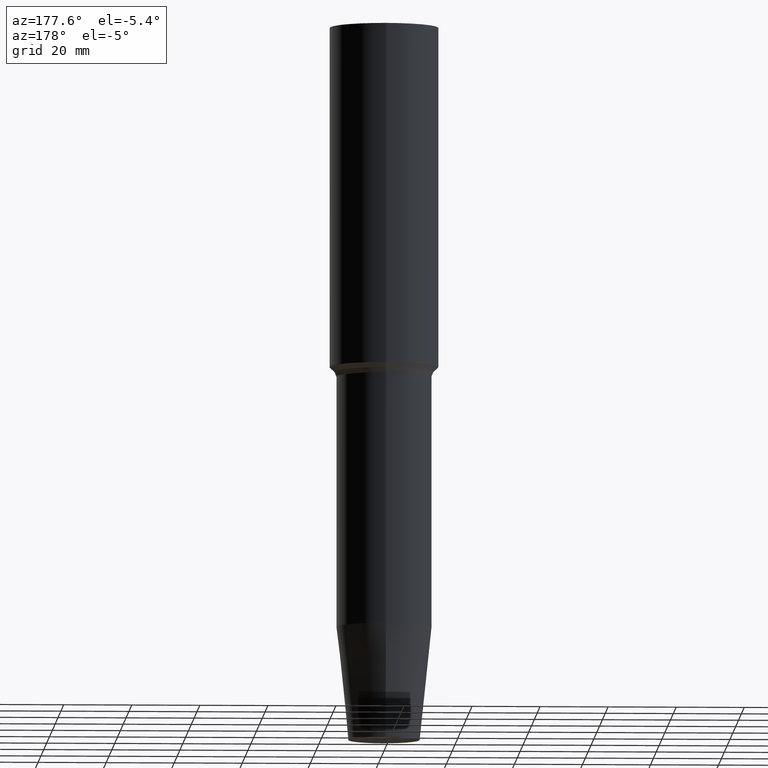
[diagram: clean part render]
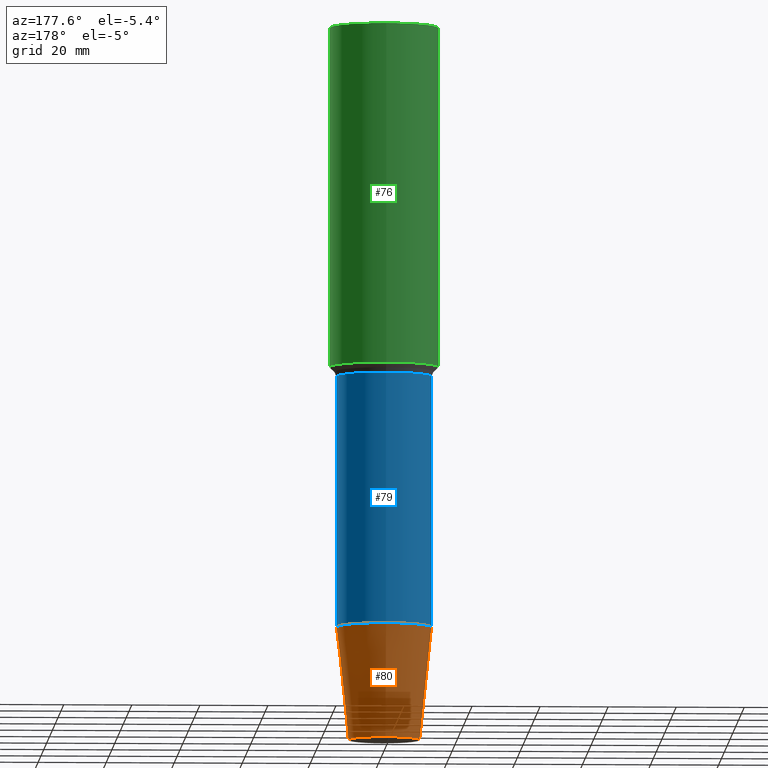
[diagram: same view with three faces highlighted in distinct colors, each labeled with its STEP entity id]
A machine part, auxiliary view with three faces highlighted in distinct colors.
Their STEP definitions:

[orange] entity #80 — the highlighted conical surface has half-angle 6 deg.
#80=ADVANCED_FACE('',(#97,#98),#99,.T.);
#97=FACE_BOUND('',#116,.T.);
#98=FACE_BOUND('',#117,.T.);
#99=CONICAL_SURFACE('',#118,12.250000000001,0.104719755119683);
#116=EDGE_LOOP('',(#145));
#117=EDGE_LOOP('',(#146));
#118=AXIS2_PLACEMENT_3D('',#147,#148,#149);
#145=ORIENTED_EDGE('',*,*,#159,.F.);
#146=ORIENTED_EDGE('',*,*,#158,.T.);
#147=CARTESIAN_POINT('',(-1.0195268977931E-015,2.42978035785094E-015,16.6501377948798));
#148=DIRECTION('',(-6.12323399573676E-017,1.45931546500362E-016,1.0));
#149=DIRECTION('',(4.10857733504554E-033,1.0,-1.45931546500362E-016));
#158=EDGE_CURVE('',#168,#168,#169,.T.);
#159=EDGE_CURVE('',#170,#170,#171,.T.);
#168=VERTEX_POINT('',#180);
#169=CIRCLE('',#181,14.0000000000004);
#170=VERTEX_POINT('',#182);
#171=CIRCLE('',#183,10.5000000000017);
#180=CARTESIAN_POINT('',(-2.03905379558619E-015,14.0000000000004,33.3002755897596));
#181=AXIS2_PLACEMENT_3D('',#196,#197,#198);
#182=CARTESIAN_POINT('',(0.0,10.5000000000017,0.0));
#183=AXIS2_PLACEMENT_3D('',#199,#200,#201);
#196=CARTESIAN_POINT('',(-2.03905379558619E-015,4.85956071570187E-015,33.3002755897596));
#197=DIRECTION('',(6.12323399573677E-017,-1.45931546500362E-016,-1.0));
#198=DIRECTION('',(4.10857733504554E-033,1.0,-1.45931546500362E-016));
#199=CARTESIAN_POINT('',(0.0,0.0,0.0));
#200=DIRECTION('',(6.12323399573677E-017,-1.45931546500362E-016,-1.0));
#201=DIRECTION('',(4.10857733504554E-033,1.0,-1.45931546500362E-016));

[blue] entity #79 — the highlighted cylindrical surface (bore or boss wall) has radius 14 mm, axis along (-0, 0, 1).
#79=ADVANCED_FACE('',(#94,#95),#96,.T.);
#94=FACE_BOUND('',#113,.T.);
#95=FACE_BOUND('',#114,.T.);
#96=CYLINDRICAL_SURFACE('',#115,14.0000000000004);
#113=EDGE_LOOP('',(#140));
#114=EDGE_LOOP('',(#141));
#115=AXIS2_PLACEMENT_3D('',#142,#143,#144);
#140=ORIENTED_EDGE('',*,*,#158,.F.);
#141=ORIENTED_EDGE('',*,*,#157,.T.);
#142=CARTESIAN_POINT('',(-4.3007099898249E-015,1.02496370431323E-014,70.2359242325089));
#143=DIRECTION('',(-6.12323399573677E-017,1.45931546500362E-016,1.0));
#144=DIRECTION('',(4.10857733504554E-033,1.0,-1.45931546500362E-016));
#157=EDGE_CURVE('',#166,#166,#167,.T.);
#158=EDGE_CURVE('',#168,#168,#169,.T.);
#166=VERTEX_POINT('',#178);
#167=CIRCLE('',#179,14.0000000000004);
#168=VERTEX_POINT('',#180);
#169=CIRCLE('',#181,14.0000000000004);
#178=CARTESIAN_POINT('',(-6.56236618406361E-015,14.0000000000004,107.171572875258));
#179=AXIS2_PLACEMENT_3D('',#193,#194,#195);
#180=CARTESIAN_POINT('',(-2.03905379558619E-015,14.0000000000004,33.3002755897596));
#181=AXIS2_PLACEMENT_3D('',#196,#197,#198);
#193=CARTESIAN_POINT('',(-6.56236618406361E-015,1.56397133705627E-014,107.171572875258));
#194=DIRECTION('',(6.12323399573677E-017,-1.45931546500362E-016,-1.0));
#195=DIRECTION('',(4.10857733504554E-033,1.0,-1.45931546500362E-016));
#196=CARTESIAN_POINT('',(-2.03905379558619E-015,4.85956071570187E-015,33.3002755897596));
#197=DIRECTION('',(6.12323399573677E-017,-1.45931546500362E-016,-1.0));
#198=DIRECTION('',(4.10857733504554E-033,1.0,-1.45931546500362E-016));

[green] entity #76 — the highlighted cylindrical surface (bore or boss wall) has radius 16 mm, axis along (-0, 0, 1).
#76=ADVANCED_FACE('',(#85,#86),#87,.T.);
#85=FACE_BOUND('',#104,.T.);
#86=FACE_BOUND('',#105,.T.);
#87=CYLINDRICAL_SURFACE('',#106,16.0000000004299);
#104=EDGE_LOOP('',(#125));
#105=EDGE_LOOP('',(#126));
#106=AXIS2_PLACEMENT_3D('',#127,#128,#129);
#125=ORIENTED_EDGE('',*,*,#155,.F.);
#126=ORIENTED_EDGE('',*,*,#154,.T.);
#127=CARTESIAN_POINT('',(-9.79717439319219E-015,2.33490474400897E-014,160.000000000218));
#128=DIRECTION('',(-6.12323399573676E-017,1.45931546500362E-016,1.0));
#129=DIRECTION('',(4.10857733504554E-033,1.0,-1.45931546500362E-016));
#154=EDGE_CURVE('',#160,#160,#161,.T.);
#155=EDGE_CURVE('',#162,#162,#163,.T.);
#160=VERTEX_POINT('',#172);
#161=CIRCLE('',#173,16.0000000004298);
#162=VERTEX_POINT('',#174);
#163=CIRCLE('',#175,16.0000000004299);
#172=CARTESIAN_POINT('',(-1.28587913910474E-014,16.0000000004299,210.000000000003));
#173=AXIS2_PLACEMENT_3D('',#184,#185,#186);
#174=CARTESIAN_POINT('',(-6.73555739533699E-015,16.0000000004299,110.000000000434));
#175=AXIS2_PLACEMENT_3D('',#187,#188,#189);
#184=CARTESIAN_POINT('',(-1.28587913910474E-014,3.06456247650764E-014,210.000000000003));
#185=DIRECTION('',(6.12323399573677E-017,-1.45931546500362E-016,-1.0));
#186=DIRECTION('',(4.10857733504554E-033,1.0,-1.45931546500362E-016));
#187=CARTESIAN_POINT('',(-6.73555739533699E-015,1.60524701151031E-014,110.000000000434));
#188=DIRECTION('',(6.12323399573677E-017,-1.45931546500362E-016,-1.0));
#189=DIRECTION('',(4.10857733504555E-033,1.0,-1.45931546500362E-016));